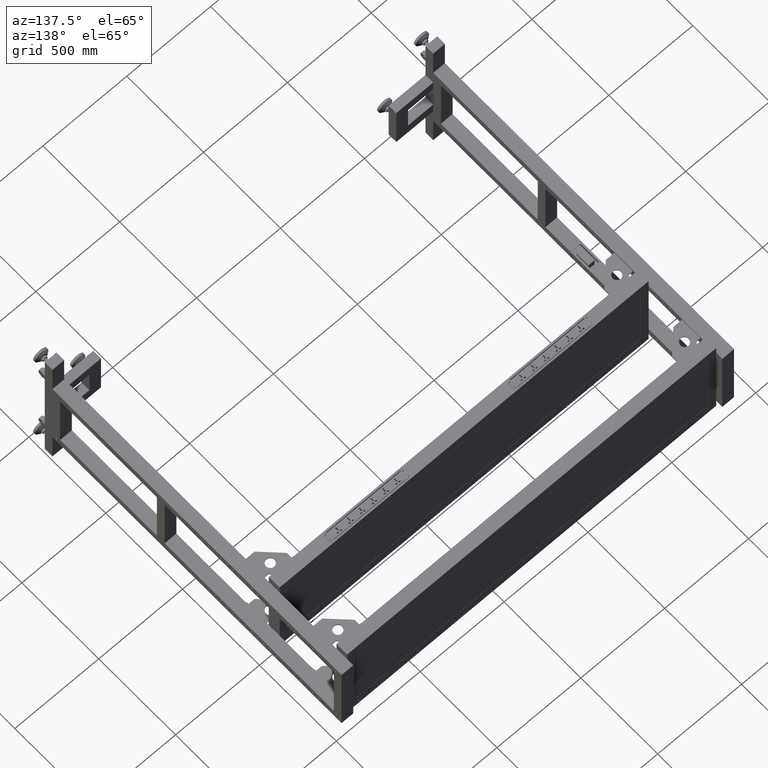
[diagram: clean part render]
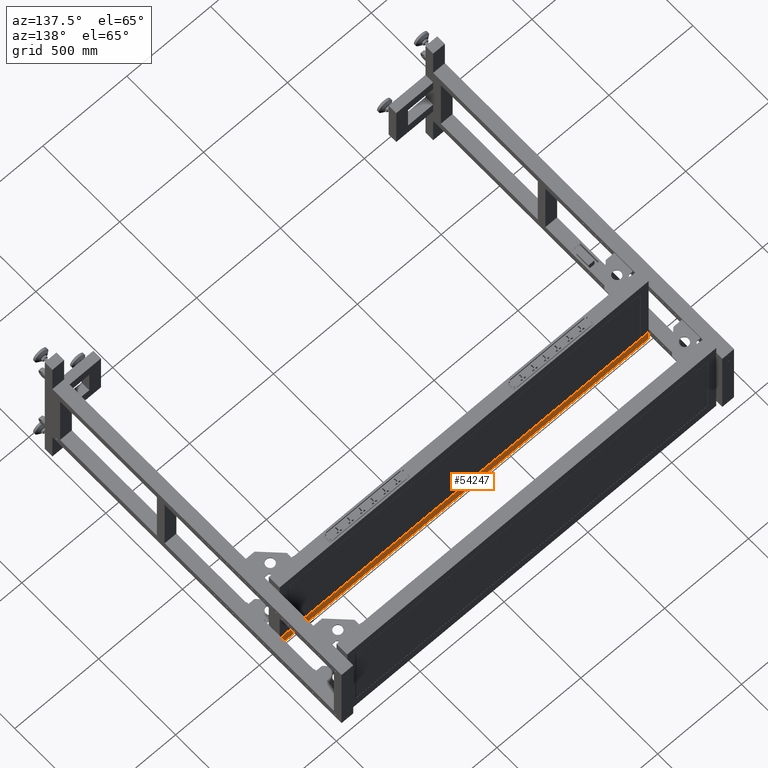
[diagram: same view with one face highlighted and labeled with its STEP entity id]
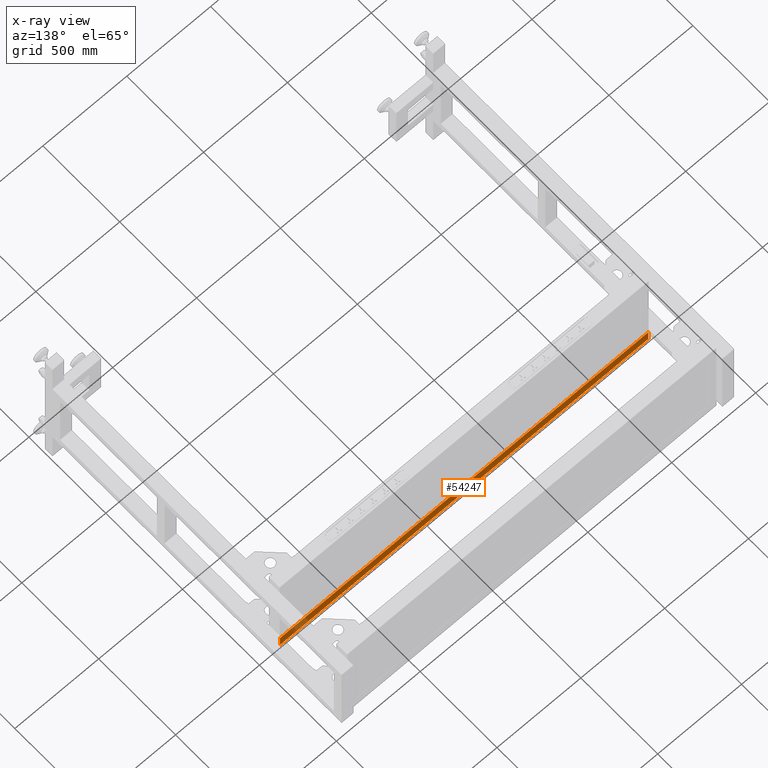
[diagram: x-ray of the same camera — body ghosted, the highlighted face saturated]
A machine part, auxiliary view. The second image highlights one B-rep face of the part: STEP entity #54247.
The next image is the same camera in x-ray: the body ghosted, the highlighted face saturated — about 4% of this face is hidden behind the body in this view.
In plain terms, the highlighted planar face has unit normal (0, -1, -0).
Its self-contained STEP definition (entity closure, byte-faithful):
#1761 = CARTESIAN_POINT ( 'NONE',  ( 929.8275125628159685, 556.9410804020127443, -229.9999999999998863 ) ) ;
#4075 = DIRECTION ( 'NONE',  ( -7.960835153364788038E-31, 2.999999999999999839E-15, -1.000000000000000000 ) ) ;
#9717 = EDGE_CURVE ( 'NONE', #81001, #49409, #28598, .T. ) ;
#10107 = DIRECTION ( 'NONE',  ( 0.000000000000000000, 2.999999999999999839E-15, -1.000000000000000000 ) ) ;
#10764 = VECTOR ( 'NONE', #10107, 1000.000000000000000 ) ;
#11567 = CARTESIAN_POINT ( 'NONE',  ( -1266.172487437185964, 556.9410804020126307, -299.9999999999999432 ) ) ;
#18356 = ORIENTED_EDGE ( 'NONE', *, *, #49432, .T. ) ;
#18978 = ORIENTED_EDGE ( 'NONE', *, *, #52759, .F. ) ;
#23800 = VERTEX_POINT ( 'NONE', #23949 ) ;
#23949 = CARTESIAN_POINT ( 'NONE',  ( -1266.172487437185964, 556.9410804020126307, -299.9999999999999432 ) ) ;
#24254 = CARTESIAN_POINT ( 'NONE',  ( -1266.172487437185964, 556.9410804020124033, -229.9999999999998863 ) ) ;
#25902 = VECTOR ( 'NONE', #43881, 1000.000000000000000 ) ;
#27102 = ORIENTED_EDGE ( 'NONE', *, *, #80403, .F. ) ;
#27780 = CARTESIAN_POINT ( 'NONE',  ( -1266.172487437185964, 556.9410804020124033, -229.9999999999998863 ) ) ;
#28182 = CARTESIAN_POINT ( 'NONE',  ( 929.8275125628159685, 556.9410804020129717, -299.9999999999999432 ) ) ;
#28591 = DIRECTION ( 'NONE',  ( 1.000000000000000000, 0.000000000000000000, -0.000000000000000000 ) ) ;
#28598 = LINE ( 'NONE', #64640, #36985 ) ;
#29085 = PLANE ( 'NONE',  #75792 ) ;
#30787 = LINE ( 'NONE', #11567, #25902 ) ;
#33514 = VECTOR ( 'NONE', #28591, 1000.000000000000000 ) ;
#34432 = FACE_OUTER_BOUND ( 'NONE', #71373, .T. ) ;
#36985 = VECTOR ( 'NONE', #4075, 1000.000000000000000 ) ;
#36989 = VERTEX_POINT ( 'NONE', #24254 ) ;
#42044 = CARTESIAN_POINT ( 'NONE',  ( -1266.172487437185964, 556.9410804020124033, -229.9999999999998863 ) ) ;
#43881 = DIRECTION ( 'NONE',  ( 1.000000000000000000, 0.000000000000000000, -0.000000000000000000 ) ) ;
#49409 = VERTEX_POINT ( 'NONE', #28182 ) ;
#49432 = EDGE_CURVE ( 'NONE', #36989, #81001, #77303, .T. ) ;
#52759 = EDGE_CURVE ( 'NONE', #23800, #49409, #30787, .T. ) ;
#54247 = ADVANCED_FACE ( 'NONE', ( #34432 ), #29085, .F. ) ;
#60606 = CARTESIAN_POINT ( 'NONE',  ( -1266.172487437185964, 556.9410804020124033, -229.9999999999998863 ) ) ;
#64640 = CARTESIAN_POINT ( 'NONE',  ( 929.8275125628159685, 556.9410804020127443, -229.9999999999998863 ) ) ;
#65354 = LINE ( 'NONE', #42044, #10764 ) ;
#71373 = EDGE_LOOP ( 'NONE', ( #18356, #71494, #18978, #27102 ) ) ;
#71494 = ORIENTED_EDGE ( 'NONE', *, *, #9717, .T. ) ;
#72061 = DIRECTION ( 'NONE',  ( 0.000000000000000000, 2.999999999999999839E-15, -1.000000000000000000 ) ) ;
#75792 = AXIS2_PLACEMENT_3D ( 'NONE', #60606, #78180, #72061 ) ;
#77303 = LINE ( 'NONE', #27780, #33514 ) ;
#78180 = DIRECTION ( 'NONE',  ( 0.000000000000000000, -1.000000000000000000, -2.999999999999999839E-15 ) ) ;
#80403 = EDGE_CURVE ( 'NONE', #36989, #23800, #65354, .T. ) ;
#81001 = VERTEX_POINT ( 'NONE', #1761 ) ;